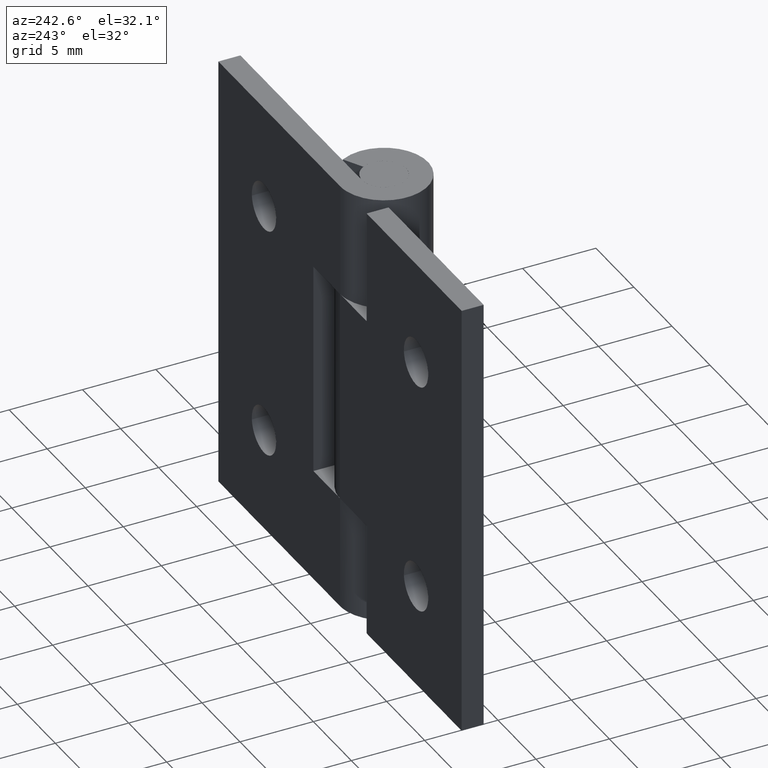
[diagram: clean part render]
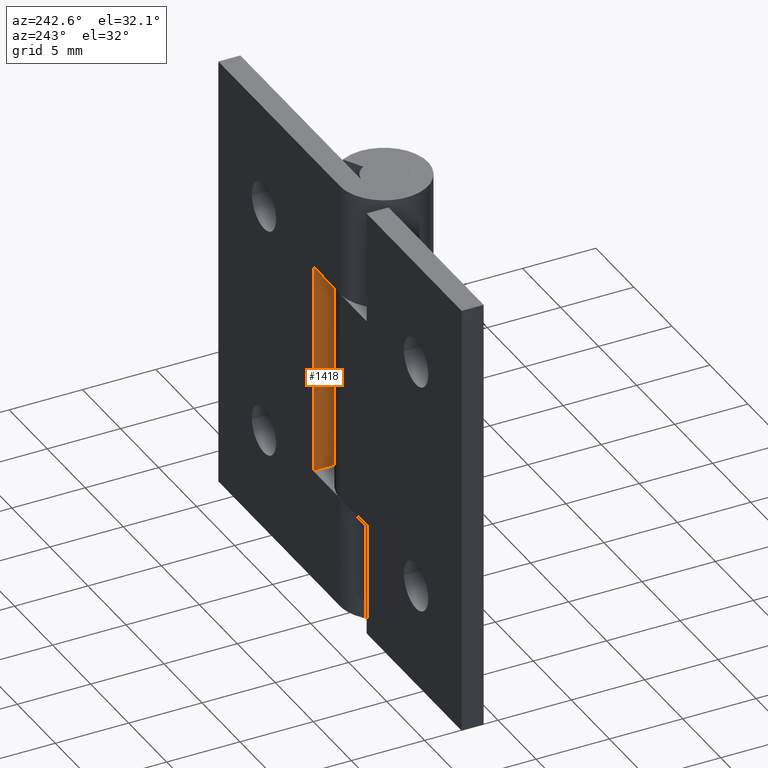
[diagram: same view with one face highlighted and labeled with its STEP entity id]
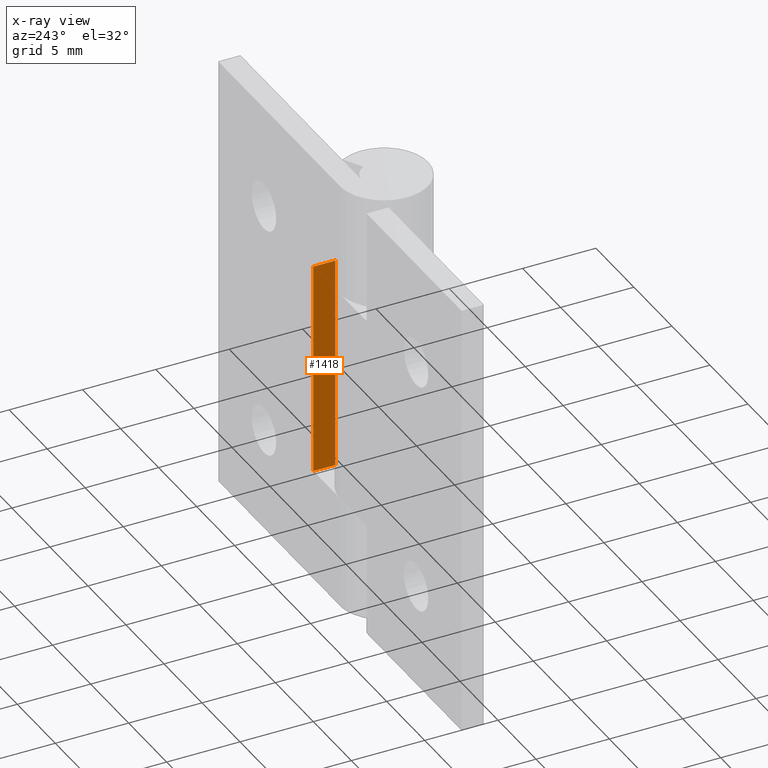
[diagram: x-ray of the same camera — body ghosted, the highlighted face saturated]
A machine part, auxiliary view. The second image highlights one B-rep face of the part: STEP entity #1418.
The next image is the same camera in x-ray: the body ghosted, the highlighted face saturated — about 0% of this face is hidden behind the body in this view.
In plain terms, the highlighted face is a freeform B-spline surface patch.
Its self-contained STEP definition (entity closure, byte-faithful):
#1248=CARTESIAN_POINT('',(3.499999999999901,1.499999999999946,7.699996999999900));
#1249=VERTEX_POINT('',#1248);
#1250=CARTESIAN_POINT('',(3.499999999999901,3.0,7.699996999999900));
#1251=VERTEX_POINT('',#1250);
#1252=CARTESIAN_POINT('',(3.499999999999901,1.499999999999946,7.699996999999900));
#1253=CARTESIAN_POINT('',(3.499999999999901,3.0,7.699996999999900));
#1254=QUASI_UNIFORM_CURVE('',1,(#1252,#1253),.UNSPECIFIED.,.F.,.U.);
#1255=EDGE_CURVE('',#1249,#1251,#1254,.T.);
#1377=CARTESIAN_POINT('',(3.499999999999901,3.0,22.300002999999801));
#1378=VERTEX_POINT('',#1377);
#1384=CARTESIAN_POINT('',(3.499999999999901,1.499999999999946,22.300002999999801));
#1385=VERTEX_POINT('',#1384);
#1386=CARTESIAN_POINT('',(3.499999999999901,1.499999999999946,22.300002999999801));
#1387=CARTESIAN_POINT('',(3.499999999999901,3.0,22.300002999999801));
#1388=QUASI_UNIFORM_CURVE('',1,(#1386,#1387),.UNSPECIFIED.,.F.,.U.);
#1389=EDGE_CURVE('',#1385,#1378,#1388,.T.);
#1399=CARTESIAN_POINT('',(3.499999999999901,1.425075002907234,23.029273408456561));
#1400=CARTESIAN_POINT('',(3.499999999999901,1.425075002907234,6.970726330474687));
#1401=CARTESIAN_POINT('',(3.499999999999901,3.074925037325848,23.029273408456561));
#1402=CARTESIAN_POINT('',(3.499999999999901,3.074925037325848,6.970726330474687));
#1403=B_SPLINE_SURFACE_WITH_KNOTS('',1,1,((#1399,#1401),(#1400,#1402)),.UNSPECIFIED.,.F.,.F.,.U.,(2,2),(2,2),(0.0,16.058547077981881),(0.041708334948495,0.958291687403247),.UNSPECIFIED.);
#1404=ORIENTED_EDGE('',*,*,#1389,.T.);
#1405=CARTESIAN_POINT('',(3.499999999999901,3.0,22.300002999999801));
#1406=CARTESIAN_POINT('',(3.499999999999901,3.0,7.699996999999900));
#1407=QUASI_UNIFORM_CURVE('',1,(#1405,#1406),.UNSPECIFIED.,.F.,.U.);
#1408=EDGE_CURVE('',#1378,#1251,#1407,.T.);
#1409=ORIENTED_EDGE('',*,*,#1408,.T.);
#1410=ORIENTED_EDGE('',*,*,#1255,.F.);
#1411=CARTESIAN_POINT('',(3.499999999999901,1.499999999999946,22.300002999999801));
#1412=CARTESIAN_POINT('',(3.499999999999901,1.499999999999946,7.699996999999900));
#1413=QUASI_UNIFORM_CURVE('',1,(#1411,#1412),.UNSPECIFIED.,.F.,.U.);
#1414=EDGE_CURVE('',#1385,#1249,#1413,.T.);
#1415=ORIENTED_EDGE('',*,*,#1414,.F.);
#1416=EDGE_LOOP('',(#1404,#1409,#1410,#1415));
#1417=FACE_OUTER_BOUND('',#1416,.T.);
#1418=ADVANCED_FACE('',(#1417),#1403,.F.);